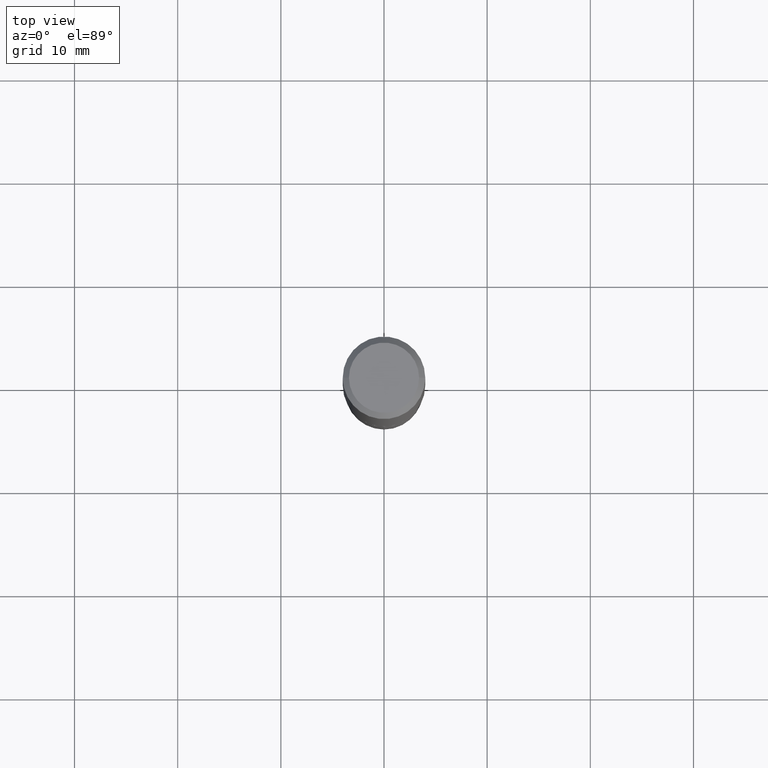
[diagram: clean part render]
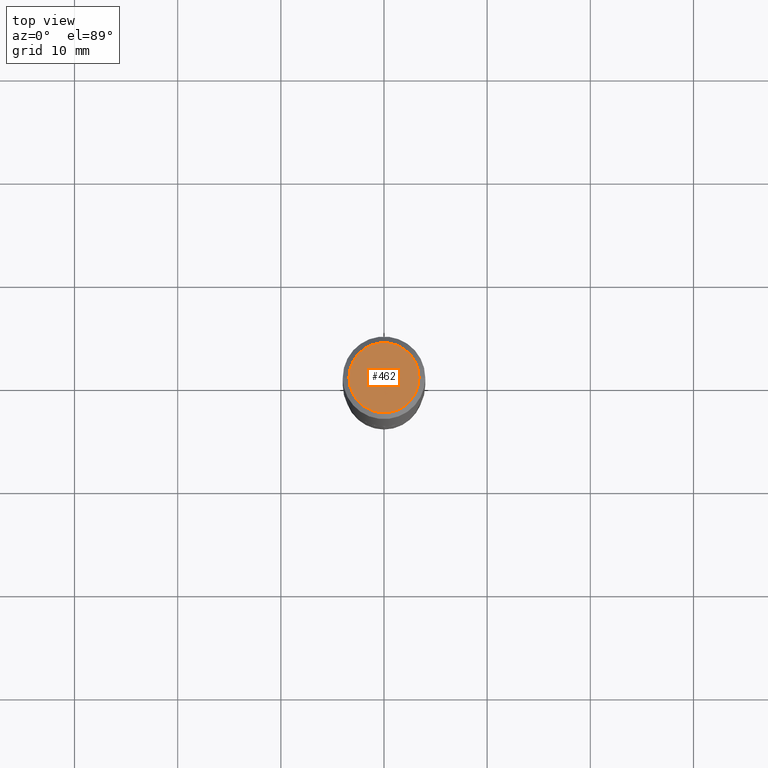
[diagram: same view with one face highlighted and labeled with its STEP entity id]
A machine part, top view. The second image highlights one B-rep face of the part: STEP entity #462.
In plain terms, the highlighted planar face has unit normal (0, -0, -1).
Its self-contained STEP definition (entity closure, byte-faithful):
#5 = EDGE_CURVE ( 'NONE', #71, #396, #48, .T. ) ;
#11 = CARTESIAN_POINT ( 'NONE',  ( -1.002970424325035327E-46, 1.431975951230899223E-32, 4.101342130344493665E-18 ) ) ;
#26 = DIRECTION ( 'NONE',  ( 1.000000000000000000, -6.982962677686266711E-15, 4.876170806578254279E-29 ) ) ;
#30 = EDGE_LOOP ( 'NONE', ( #139, #194 ) ) ;
#32 = AXIS2_PLACEMENT_3D ( 'NONE', #96, #123, #26 ) ;
#48 = CIRCLE ( 'NONE', #32, 0.1338749999999999940 ) ;
#50 = CARTESIAN_POINT ( 'NONE',  ( -5.014852121625176635E-47, 7.159879756154496113E-33, 2.050671065172246833E-18 ) ) ;
#71 = VERTEX_POINT ( 'NONE', #166 ) ;
#96 = CARTESIAN_POINT ( 'NONE',  ( -1.002970424325035327E-46, 1.431975951230899223E-32, 4.101342130344493665E-18 ) ) ;
#113 = DIRECTION ( 'NONE',  ( 1.000000000000000000, -6.982962677686266711E-15, 4.876170806578254279E-29 ) ) ;
#123 = DIRECTION ( 'NONE',  ( -2.445468806185136597E-29, 3.491481338843145583E-15, 1.000000000000000000 ) ) ;
#139 = ORIENTED_EDGE ( 'NONE', *, *, #279, .T. ) ;
#166 = CARTESIAN_POINT ( 'NONE',  ( 0.1338749999999999940, -1.040731925365424925E-15, 4.101342130351401591E-18 ) ) ;
#188 = DIRECTION ( 'NONE',  ( 2.438088387897960049E-29, -3.491481338843145188E-15, -1.000000000000000000 ) ) ;
#192 = DIRECTION ( 'NONE',  ( -1.000000000000000000, 6.982962677686265922E-15, -4.876176775795935793E-29 ) ) ;
#194 = ORIENTED_EDGE ( 'NONE', *, *, #5, .T. ) ;
#211 = CARTESIAN_POINT ( 'NONE',  ( -0.1338749999999999940, 9.760872517903331886E-16, 4.101342130337811459E-18 ) ) ;
#230 = PLANE ( 'NONE',  #264 ) ;
#264 = AXIS2_PLACEMENT_3D ( 'NONE', #50, #188, #192 ) ;
#279 = EDGE_CURVE ( 'NONE', #396, #71, #447, .T. ) ;
#329 = AXIS2_PLACEMENT_3D ( 'NONE', #11, #409, #113 ) ;
#373 = FACE_OUTER_BOUND ( 'NONE', #30, .T. ) ;
#396 = VERTEX_POINT ( 'NONE', #211 ) ;
#409 = DIRECTION ( 'NONE',  ( -2.445468806185136597E-29, 3.491481338843145583E-15, 1.000000000000000000 ) ) ;
#447 = CIRCLE ( 'NONE', #329, 0.1338749999999999940 ) ;
#462 = ADVANCED_FACE ( 'NONE', ( #373 ), #230, .F. ) ;